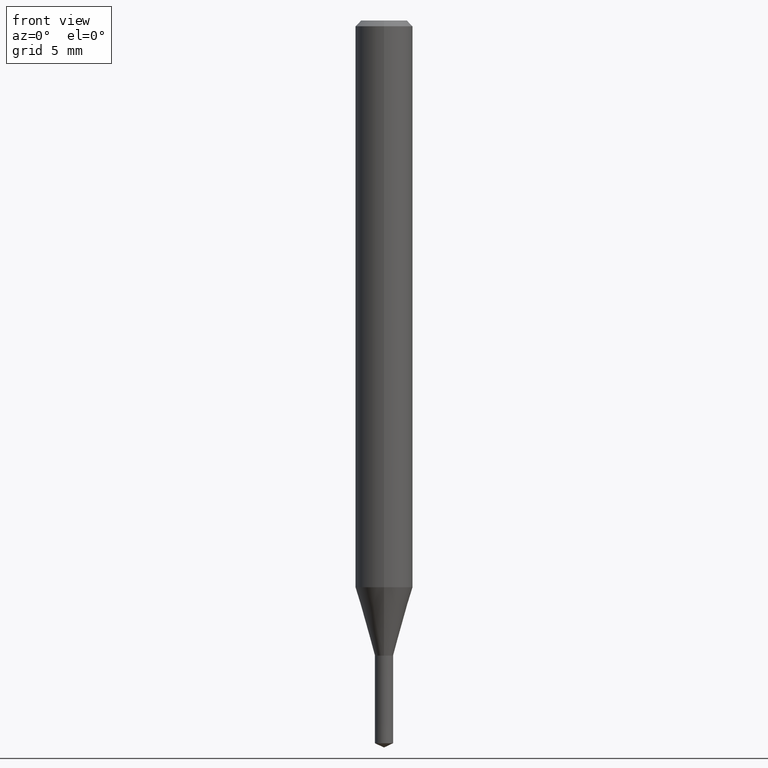
[diagram: clean part render]
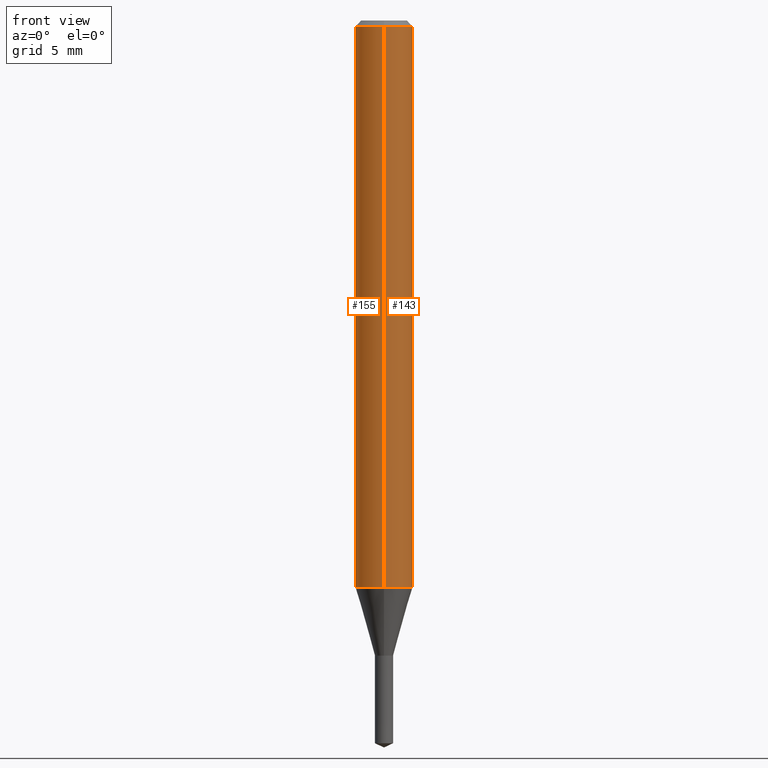
[diagram: same view with one multi-face feature highlighted, each face labeled with its STEP entity id]
A machine part, front view. The highlighted faces form ONE feature: a constant-radius fillet chain: 2 tangent blend faces with common blend radius 1.5 mm. The faces share edges in the B-rep.
Their STEP definitions:
[1] entity #143 (Cylinder):
#91=EDGE_CURVE('',#193,#97,#226,.T.);
#97=VERTEX_POINT('',#232);
#113=EDGE_CURVE('',#203,#153,#251,.T.);
#143=ADVANCED_FACE('',(#287),#288,.T.);
#153=VERTEX_POINT('',#298);
#165=EDGE_CURVE('',#203,#97,#312,.T.);
#167=EDGE_CURVE('',#153,#193,#314,.T.);
#193=VERTEX_POINT('',#342);
#203=VERTEX_POINT('',#353);
#226=LINE('',#369,#370);
#232=CARTESIAN_POINT('',(1.83690953073357E-016,-1.5,-0.300000000000001));
#251=LINE('',#405,#406);
#287=FACE_OUTER_BOUND('',#452,.T.);
#288=CYLINDRICAL_SURFACE('',#453,1.5);
#298=CARTESIAN_POINT('',(0.0,1.5,-29.625));
#312=CIRCLE('',#478,1.5);
#314=CIRCLE('',#481,1.5);
#342=CARTESIAN_POINT('',(1.83690953073357E-016,-1.5,-29.625));
#353=CARTESIAN_POINT('',(0.0,1.5,-0.300000000000001));
#369=CARTESIAN_POINT('',(1.83690953073357E-016,-1.5,-14.9625));
#370=VECTOR('',#535,1.0);
#405=CARTESIAN_POINT('',(-1.83690953073357E-016,1.5,-14.9625));
#406=VECTOR('',#564,1.0);
#452=EDGE_LOOP('',(#622,#623,#624,#625));
#453=AXIS2_PLACEMENT_3D('',#626,#627,#628);
#478=AXIS2_PLACEMENT_3D('',#647,#648,#649);
#481=AXIS2_PLACEMENT_3D('',#650,#651,#652);
#535=DIRECTION('',(-0.0,-0.0,1.0));
#564=DIRECTION('',(0.0,0.0,-1.0));
#622=ORIENTED_EDGE('',*,*,#113,.F.);
#623=ORIENTED_EDGE('',*,*,#165,.T.);
#624=ORIENTED_EDGE('',*,*,#91,.F.);
#625=ORIENTED_EDGE('',*,*,#167,.F.);
#626=CARTESIAN_POINT('',(0.0,0.0,-14.9625));
#627=DIRECTION('',(-0.0,-0.0,1.0));
#628=DIRECTION('',(0.0,1.0,0.0));
#647=CARTESIAN_POINT('',(0.0,0.0,-0.300000000000001));
#648=DIRECTION('',(0.0,0.0,-1.0));
#649=DIRECTION('',(0.0,1.0,0.0));
#650=CARTESIAN_POINT('',(0.0,0.0,-29.625));
#651=DIRECTION('',(0.0,0.0,-1.0));
#652=DIRECTION('',(0.0,1.0,0.0));
[2] entity #155 (Cylinder):
#91=EDGE_CURVE('',#193,#97,#226,.T.);
#97=VERTEX_POINT('',#232);
#113=EDGE_CURVE('',#203,#153,#251,.T.);
#151=EDGE_CURVE('',#193,#153,#296,.T.);
#153=VERTEX_POINT('',#298);
#155=ADVANCED_FACE('',(#300),#301,.T.);
#193=VERTEX_POINT('',#342);
#195=EDGE_CURVE('',#97,#203,#344,.T.);
#203=VERTEX_POINT('',#353);
#226=LINE('',#369,#370);
#232=CARTESIAN_POINT('',(1.83690953073357E-016,-1.5,-0.300000000000001));
#251=LINE('',#405,#406);
#296=CIRCLE('',#462,1.5);
#298=CARTESIAN_POINT('',(0.0,1.5,-29.625));
#300=FACE_OUTER_BOUND('',#466,.T.);
#301=CYLINDRICAL_SURFACE('',#467,1.5);
#342=CARTESIAN_POINT('',(1.83690953073357E-016,-1.5,-29.625));
#344=CIRCLE('',#520,1.5);
#353=CARTESIAN_POINT('',(0.0,1.5,-0.300000000000001));
#369=CARTESIAN_POINT('',(1.83690953073357E-016,-1.5,-14.9625));
#370=VECTOR('',#535,1.0);
#405=CARTESIAN_POINT('',(-1.83690953073357E-016,1.5,-14.9625));
#406=VECTOR('',#564,1.0);
#462=AXIS2_PLACEMENT_3D('',#629,#630,#631);
#466=EDGE_LOOP('',(#633,#634,#635,#636));
#467=AXIS2_PLACEMENT_3D('',#637,#638,#639);
#520=AXIS2_PLACEMENT_3D('',#686,#687,#688);
#535=DIRECTION('',(-0.0,-0.0,1.0));
#564=DIRECTION('',(0.0,0.0,-1.0));
#629=CARTESIAN_POINT('',(0.0,0.0,-29.625));
#630=DIRECTION('',(0.0,0.0,-1.0));
#631=DIRECTION('',(0.0,1.0,0.0));
#633=ORIENTED_EDGE('',*,*,#113,.T.);
#634=ORIENTED_EDGE('',*,*,#151,.F.);
#635=ORIENTED_EDGE('',*,*,#91,.T.);
#636=ORIENTED_EDGE('',*,*,#195,.T.);
#637=CARTESIAN_POINT('',(0.0,0.0,-14.9625));
#638=DIRECTION('',(-0.0,-0.0,1.0));
#639=DIRECTION('',(0.0,1.0,0.0));
#686=CARTESIAN_POINT('',(0.0,0.0,-0.300000000000001));
#687=DIRECTION('',(0.0,0.0,-1.0));
#688=DIRECTION('',(0.0,1.0,0.0));